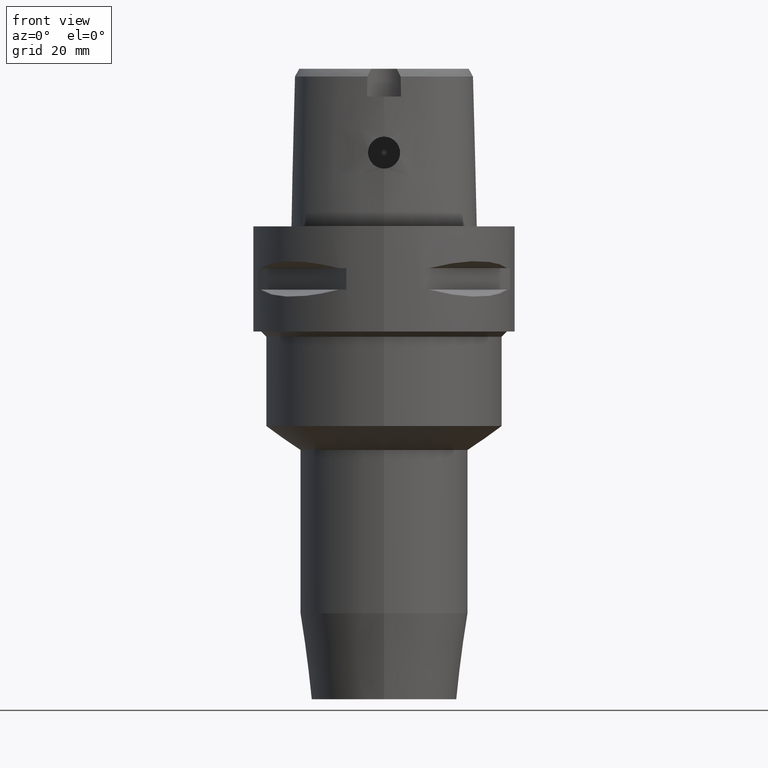
[diagram: clean part render]
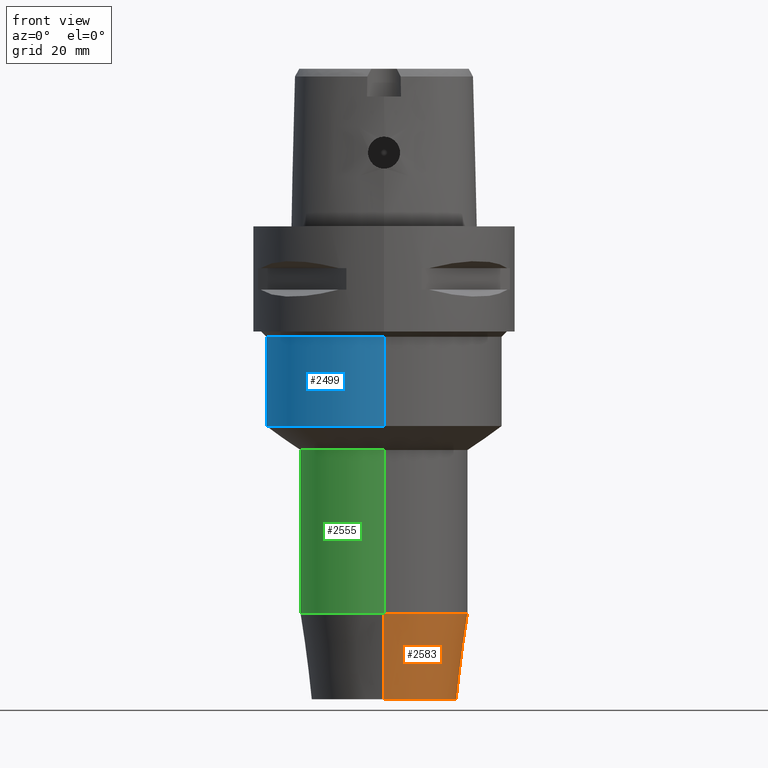
[diagram: same view with three faces highlighted in distinct colors, each labeled with its STEP entity id]
A machine part, front view with three faces highlighted in distinct colors.
Their STEP definitions:

[orange] entity #2583 — the highlighted conical surface has half-angle 7.5 deg.
#634=DIRECTION('',(0.E0,1.305261922200E-1,-9.914448613738E-1));
#635=VECTOR('',#634,1.650626562651E1);
#636=CARTESIAN_POINT('',(0.E0,-1.6E1,-7.363494776413E1));
#637=LINE('',#636,#635);
#641=DIRECTION('',(0.E0,-1.305261922200E-1,-9.914448613738E-1));
#642=VECTOR('',#641,1.650626562651E1);
#643=CARTESIAN_POINT('',(0.E0,1.6E1,-7.363494776413E1));
#644=LINE('',#643,#642);
#648=CARTESIAN_POINT('',(0.E0,0.E0,-7.363494776413E1));
#649=DIRECTION('',(0.E0,0.E0,1.E0));
#650=DIRECTION('',(0.E0,-1.E0,0.E0));
#651=AXIS2_PLACEMENT_3D('',#648,#649,#650);
#656=CARTESIAN_POINT('',(0.E0,0.E0,-9.E1));
#657=DIRECTION('',(0.E0,0.E0,1.E0));
#658=DIRECTION('',(0.E0,-1.E0,0.E0));
#659=AXIS2_PLACEMENT_3D('',#656,#657,#658);
#1618=CARTESIAN_POINT('',(0.E0,1.6E1,-7.363494776413E1));
#1619=VERTEX_POINT('',#1618);
#1620=CARTESIAN_POINT('',(0.E0,-1.6E1,-7.363494776413E1));
#1621=VERTEX_POINT('',#1620);
#1622=CARTESIAN_POINT('',(0.E0,1.38455E1,-9.E1));
#1623=VERTEX_POINT('',#1622);
#1624=CARTESIAN_POINT('',(0.E0,-1.38455E1,-9.E1));
#1625=VERTEX_POINT('',#1624);
#2571=CARTESIAN_POINT('',(0.E0,0.E0,-8.181747388207E1));
#2572=DIRECTION('',(0.E0,0.E0,1.E0));
#2573=DIRECTION('',(0.E0,1.E0,0.E0));
#2574=AXIS2_PLACEMENT_3D('',#2571,#2572,#2573);
#2575=CONICAL_SURFACE('',#2574,1.492275E1,7.5E0);
#2576=ORIENTED_EDGE('',*,*,#2561,.T.);
#2578=ORIENTED_EDGE('',*,*,#2577,.F.);
#2579=ORIENTED_EDGE('',*,*,#2564,.F.);
#2580=ORIENTED_EDGE('',*,*,#2535,.T.);
#2581=EDGE_LOOP('',(#2576,#2578,#2579,#2580));
#2582=FACE_OUTER_BOUND('',#2581,.F.);
#652=CIRCLE('',#651,1.6E1);
#660=CIRCLE('',#659,1.38455E1);
#2535=EDGE_CURVE('',#1621,#1619,#652,.T.);
#2561=EDGE_CURVE('',#1619,#1623,#644,.T.);
#2564=EDGE_CURVE('',#1621,#1625,#637,.T.);
#2577=EDGE_CURVE('',#1625,#1623,#660,.T.);
#2583=ADVANCED_FACE('',(#2582),#2575,.T.);

[blue] entity #2499 — the highlighted cylindrical surface (partial cylindrical patch) has radius 22.5 mm, axis along (0, 0, -1).
#529=CARTESIAN_POINT('',(0.E0,0.E0,-2.1E1));
#530=DIRECTION('',(0.E0,0.E0,-1.E0));
#531=DIRECTION('',(0.E0,-1.E0,0.E0));
#532=AXIS2_PLACEMENT_3D('',#529,#530,#531);
#552=DIRECTION('',(0.E0,-7.314321021754E-14,-1.E0));
#553=VECTOR('',#552,1.700020800129E1);
#554=CARTESIAN_POINT('',(0.E0,2.25E1,-2.1E1));
#555=LINE('',#554,#553);
#559=DIRECTION('',(0.E0,7.314321021754E-14,-1.E0));
#560=VECTOR('',#559,1.700020800129E1);
#561=CARTESIAN_POINT('',(0.E0,-2.25E1,-2.1E1));
#562=LINE('',#561,#560);
#566=CARTESIAN_POINT('',(0.E0,0.E0,-3.800020800129E1));
#567=DIRECTION('',(0.E0,0.E0,1.E0));
#568=DIRECTION('',(0.E0,1.E0,0.E0));
#569=AXIS2_PLACEMENT_3D('',#566,#567,#568);
#1606=CARTESIAN_POINT('',(0.E0,2.25E1,-2.1E1));
#1607=VERTEX_POINT('',#1606);
#1608=CARTESIAN_POINT('',(0.E0,-2.25E1,-2.1E1));
#1609=VERTEX_POINT('',#1608);
#1610=CARTESIAN_POINT('',(0.E0,2.25E1,-3.800020800129E1));
#1611=VERTEX_POINT('',#1610);
#1612=CARTESIAN_POINT('',(0.E0,-2.25E1,-3.800020800129E1));
#1613=VERTEX_POINT('',#1612);
#2487=CARTESIAN_POINT('',(0.E0,1.279755905109E-14,4.5E0));
#2488=DIRECTION('',(0.E0,0.E0,-1.E0));
#2489=DIRECTION('',(0.E0,-1.E0,0.E0));
#2490=AXIS2_PLACEMENT_3D('',#2487,#2488,#2489);
#2491=CYLINDRICAL_SURFACE('',#2490,2.25E1);
#2492=ORIENTED_EDGE('',*,*,#2477,.F.);
#2493=ORIENTED_EDGE('',*,*,#2454,.F.);
#2494=ORIENTED_EDGE('',*,*,#2481,.T.);
#2496=ORIENTED_EDGE('',*,*,#2495,.F.);
#2497=EDGE_LOOP('',(#2492,#2493,#2494,#2496));
#2498=FACE_OUTER_BOUND('',#2497,.F.);
#533=CIRCLE('',#532,2.25E1);
#570=CIRCLE('',#569,2.25E1);
#2454=EDGE_CURVE('',#1609,#1607,#533,.T.);
#2477=EDGE_CURVE('',#1607,#1611,#555,.T.);
#2481=EDGE_CURVE('',#1609,#1613,#562,.T.);
#2495=EDGE_CURVE('',#1611,#1613,#570,.T.);
#2499=ADVANCED_FACE('',(#2498),#2491,.T.);

[green] entity #2555 — the highlighted cylindrical surface (partial cylindrical patch) has radius 16 mm, axis along (0, 0, -1).
#581=CARTESIAN_POINT('',(0.E0,0.E0,-4.2559E1));
#582=DIRECTION('',(0.E0,0.E0,-1.E0));
#583=DIRECTION('',(0.E0,-1.E0,0.E0));
#584=AXIS2_PLACEMENT_3D('',#581,#582,#583);
#612=DIRECTION('',(0.E0,4.915914048638E-14,-1.E0));
#613=VECTOR('',#612,3.107594776413E1);
#614=CARTESIAN_POINT('',(0.E0,1.6E1,-4.2559E1));
#615=LINE('',#614,#613);
#619=DIRECTION('',(0.E0,-4.927346406890E-14,-1.E0));
#620=VECTOR('',#619,3.107594776413E1);
#621=CARTESIAN_POINT('',(0.E0,-1.6E1,-4.2559E1));
#622=LINE('',#621,#620);
#626=CARTESIAN_POINT('',(0.E0,0.E0,-7.363494776413E1));
#627=DIRECTION('',(0.E0,0.E0,1.E0));
#628=DIRECTION('',(0.E0,1.E0,0.E0));
#629=AXIS2_PLACEMENT_3D('',#626,#627,#628);
#1614=CARTESIAN_POINT('',(0.E0,1.6E1,-4.2559E1));
#1615=VERTEX_POINT('',#1614);
#1616=CARTESIAN_POINT('',(0.E0,-1.6E1,-4.2559E1));
#1617=VERTEX_POINT('',#1616);
#1618=CARTESIAN_POINT('',(0.E0,1.6E1,-7.363494776413E1));
#1619=VERTEX_POINT('',#1618);
#1620=CARTESIAN_POINT('',(0.E0,-1.6E1,-7.363494776413E1));
#1621=VERTEX_POINT('',#1620);
#2543=CARTESIAN_POINT('',(0.E0,1.279755905109E-14,4.5E0));
#2544=DIRECTION('',(0.E0,0.E0,-1.E0));
#2545=DIRECTION('',(0.E0,-1.E0,0.E0));
#2546=AXIS2_PLACEMENT_3D('',#2543,#2544,#2545);
#2547=CYLINDRICAL_SURFACE('',#2546,1.6E1);
#2548=ORIENTED_EDGE('',*,*,#2533,.F.);
#2549=ORIENTED_EDGE('',*,*,#2510,.F.);
#2550=ORIENTED_EDGE('',*,*,#2537,.T.);
#2552=ORIENTED_EDGE('',*,*,#2551,.F.);
#2553=EDGE_LOOP('',(#2548,#2549,#2550,#2552));
#2554=FACE_OUTER_BOUND('',#2553,.F.);
#585=CIRCLE('',#584,1.6E1);
#630=CIRCLE('',#629,1.6E1);
#2510=EDGE_CURVE('',#1617,#1615,#585,.T.);
#2533=EDGE_CURVE('',#1615,#1619,#615,.T.);
#2537=EDGE_CURVE('',#1617,#1621,#622,.T.);
#2551=EDGE_CURVE('',#1619,#1621,#630,.T.);
#2555=ADVANCED_FACE('',(#2554),#2547,.T.);